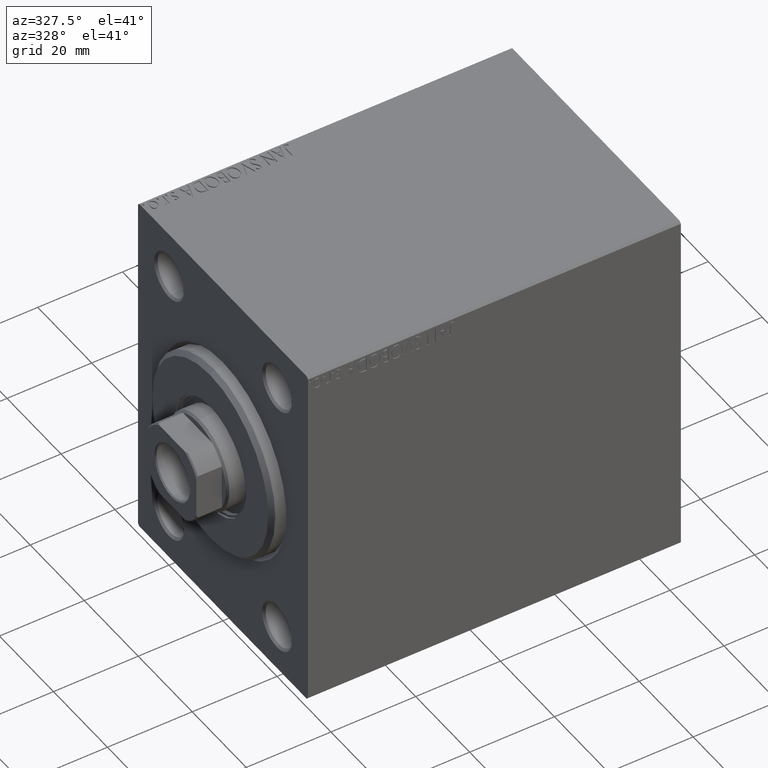
[diagram: clean part render]
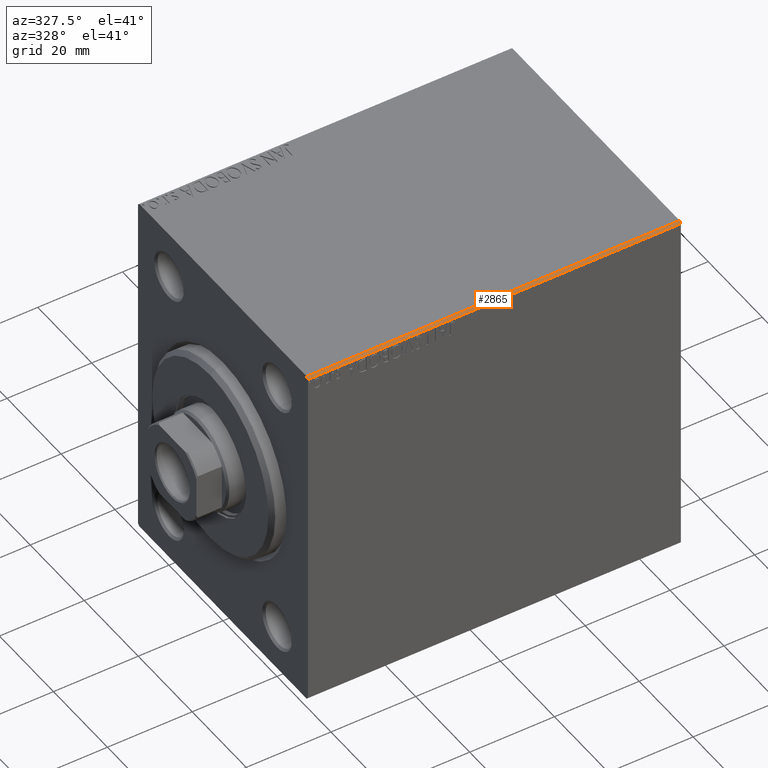
[diagram: same view with one face highlighted and labeled with its STEP entity id]
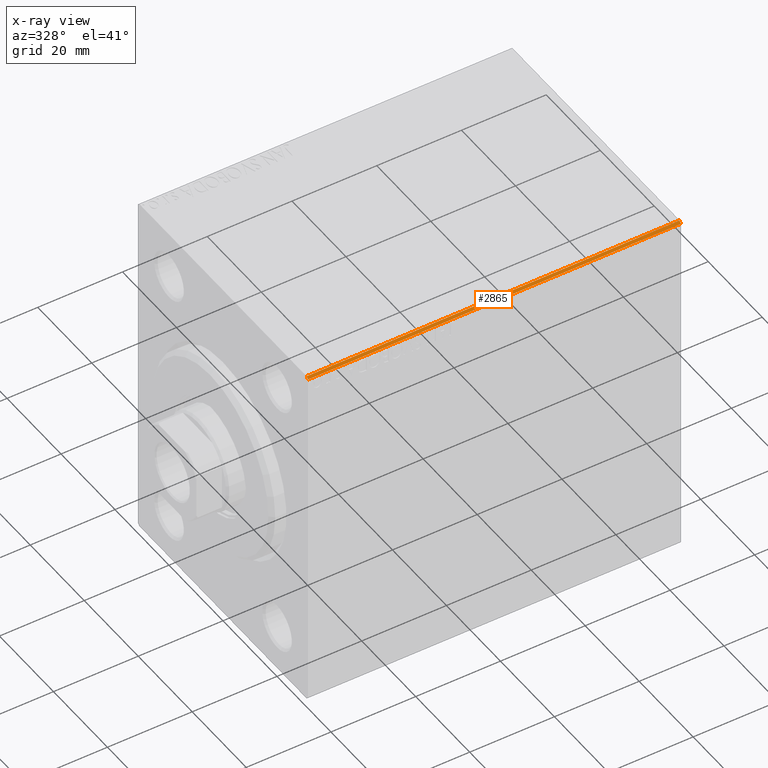
[diagram: x-ray of the same camera — body ghosted, the highlighted face saturated]
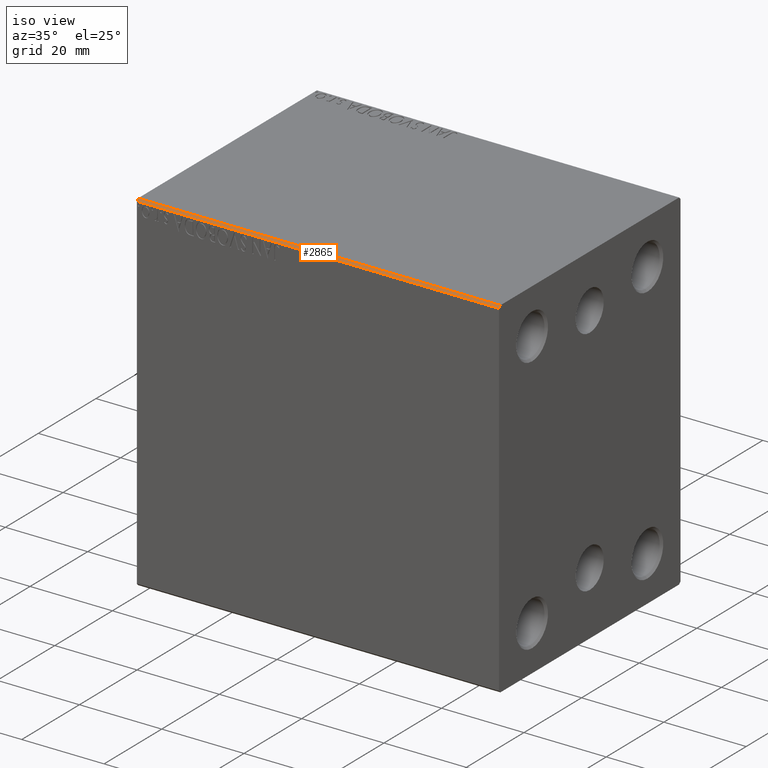
[diagram: same view with one face highlighted and labeled with its STEP entity id]
A machine part, auxiliary view. The second image highlights one B-rep face of the part: STEP entity #2865.
The next image is the same camera in x-ray: the body ghosted, the highlighted face saturated — about 0% of this face is hidden behind the body in this view.
A second angle (iso view) of the same face is appended — the face is thin or edge-on in the first view.
In plain terms, the highlighted planar face has unit normal (0, 0.7071, -0.7071).
Its self-contained STEP definition (entity closure, byte-faithful):
#1946 = CARTESIAN_POINT ( 'NONE',  ( 0.000000000000000000, -31.50000000000000000, 42.00000000000001421 ) ) ;
#2865 = ADVANCED_FACE ( 'NONE', ( #40788 ), #33664, .F. ) ;
#3326 = CARTESIAN_POINT ( 'NONE',  ( 88.00000000000000000, -31.00000000000002842, 42.49999999999998579 ) ) ;
#6859 = DIRECTION ( 'NONE',  ( 0.000000000000000000, 0.7071067811865475727, -0.7071067811865475727 ) ) ;
#7023 = VERTEX_POINT ( 'NONE', #40750 ) ;
#9932 = VECTOR ( 'NONE', #36878, 1000.000000000000114 ) ;
#10221 = CARTESIAN_POINT ( 'NONE',  ( 88.00000000000000000, -31.50000000000000000, 42.00000000000001421 ) ) ;
#12157 = VERTEX_POINT ( 'NONE', #22367 ) ;
#12637 = CARTESIAN_POINT ( 'NONE',  ( 88.00000000000000000, -31.50000000000000000, 42.00000000000001421 ) ) ;
#12862 = DIRECTION ( 'NONE',  ( -1.000000000000000000, 0.000000000000000000, 0.000000000000000000 ) ) ;
#15121 = CARTESIAN_POINT ( 'NONE',  ( 0.000000000000000000, -31.50000000000000000, 42.00000000000001421 ) ) ;
#18884 = VERTEX_POINT ( 'NONE', #1946 ) ;
#20280 = EDGE_CURVE ( 'NONE', #7023, #12157, #33901, .T. ) ;
#20332 = EDGE_CURVE ( 'NONE', #18884, #7023, #21591, .T. ) ;
#21591 = LINE ( 'NONE', #15121, #30736 ) ;
#21854 = VECTOR ( 'NONE', #12862, 1000.000000000000000 ) ;
#21892 = ORIENTED_EDGE ( 'NONE', *, *, #32632, .F. ) ;
#22367 = CARTESIAN_POINT ( 'NONE',  ( 88.00000000000000000, -31.00000000000002842, 42.49999999999998579 ) ) ;
#23729 = ORIENTED_EDGE ( 'NONE', *, *, #26060, .F. ) ;
#24125 = LINE ( 'NONE', #40434, #9932 ) ;
#24719 = DIRECTION ( 'NONE',  ( -0.000000000000000000, 0.7071067811865474617, 0.7071067811865474617 ) ) ;
#25028 = ORIENTED_EDGE ( 'NONE', *, *, #20280, .F. ) ;
#26060 = EDGE_CURVE ( 'NONE', #29194, #18884, #43414, .T. ) ;
#27262 = CARTESIAN_POINT ( 'NONE',  ( 88.00000000000000000, -31.50000000000000000, 42.00000000000001421 ) ) ;
#29194 = VERTEX_POINT ( 'NONE', #27262 ) ;
#30736 = VECTOR ( 'NONE', #24719, 1000.000000000000114 ) ;
#31679 = ORIENTED_EDGE ( 'NONE', *, *, #20332, .F. ) ;
#32134 = EDGE_LOOP ( 'NONE', ( #21892, #25028, #31679, #23729 ) ) ;
#32632 = EDGE_CURVE ( 'NONE', #12157, #29194, #24125, .T. ) ;
#33664 = PLANE ( 'NONE',  #42470 ) ;
#33901 = LINE ( 'NONE', #3326, #36448 ) ;
#34088 = DIRECTION ( 'NONE',  ( -1.000000000000000000, 0.000000000000000000, 0.000000000000000000 ) ) ;
#36448 = VECTOR ( 'NONE', #37913, 1000.000000000000000 ) ;
#36878 = DIRECTION ( 'NONE',  ( 0.000000000000000000, -0.7071067811865474617, -0.7071067811865474617 ) ) ;
#37913 = DIRECTION ( 'NONE',  ( 1.000000000000000000, 0.000000000000000000, 0.000000000000000000 ) ) ;
#40434 = CARTESIAN_POINT ( 'NONE',  ( 88.00000000000000000, -36.75000000000001421, 36.75000000000001421 ) ) ;
#40750 = CARTESIAN_POINT ( 'NONE',  ( 0.000000000000000000, -31.00000000000002842, 42.49999999999998579 ) ) ;
#40788 = FACE_OUTER_BOUND ( 'NONE', #32134, .T. ) ;
#42470 = AXIS2_PLACEMENT_3D ( 'NONE', #10221, #6859, #34088 ) ;
#43414 = LINE ( 'NONE', #12637, #21854 ) ;